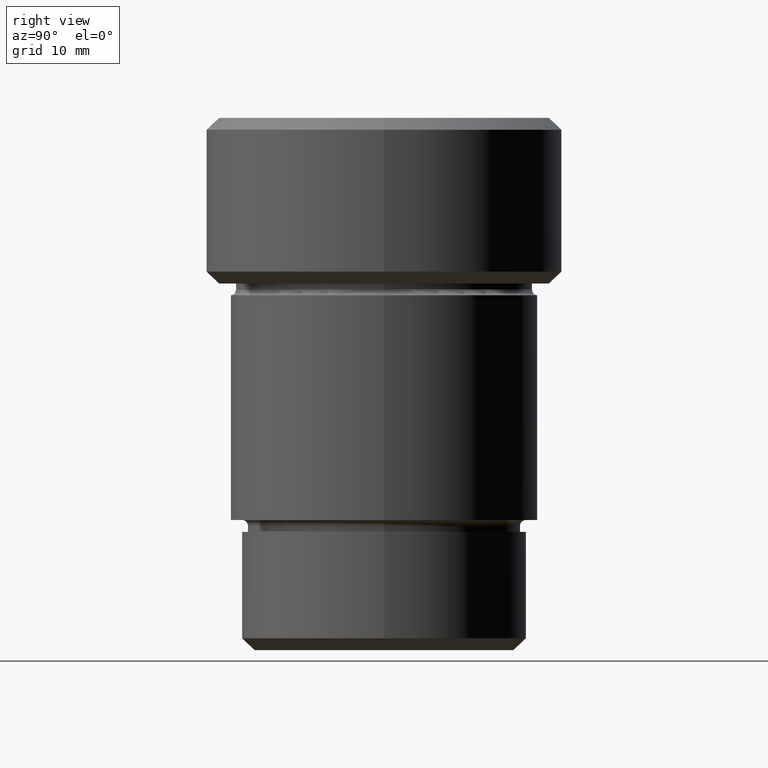
[diagram: clean part render]
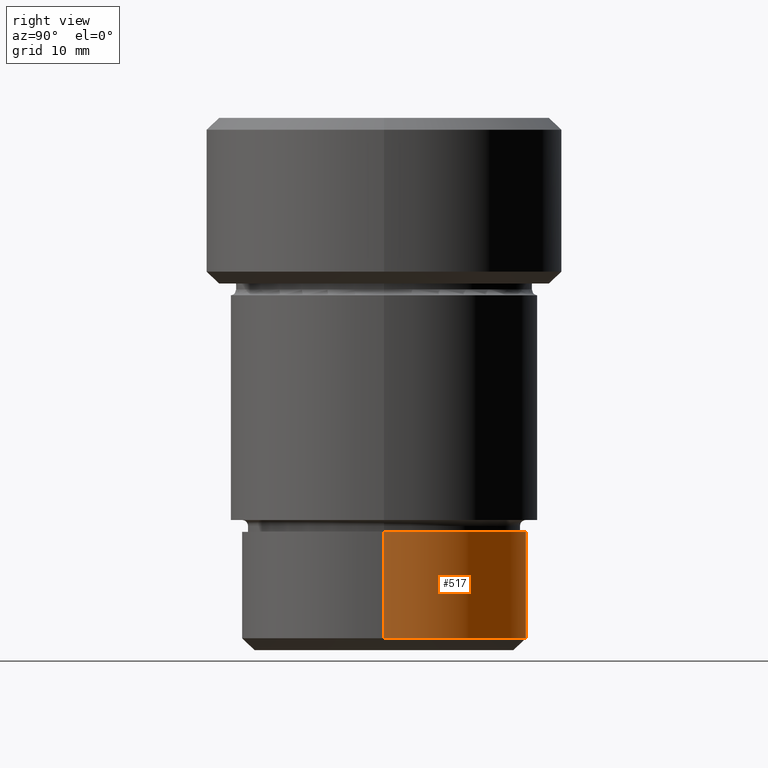
[diagram: same view with one face highlighted and labeled with its STEP entity id]
A machine part, right view. The second image highlights one B-rep face of the part: STEP entity #517.
In plain terms, the highlighted cylindrical surface (partial cylindrical patch) has radius 12 mm, axis along (-0, -0, 1).
Its self-contained STEP definition (entity closure, byte-faithful):
#17 = VERTEX_POINT ( 'NONE', #162 ) ;
#24 = DIRECTION ( 'NONE',  ( -0.000000000000000000, -0.000000000000000000, 1.000000000000000000 ) ) ;
#26 = EDGE_CURVE ( 'NONE', #241, #17, #478, .T. ) ;
#37 = LINE ( 'NONE', #771, #461 ) ;
#143 = VERTEX_POINT ( 'NONE', #452 ) ;
#148 = ORIENTED_EDGE ( 'NONE', *, *, #490, .F. ) ;
#162 = CARTESIAN_POINT ( 'NONE',  ( 12.00000000000000178, 0.000000000000000000, -35.00000000000000000 ) ) ;
#241 = VERTEX_POINT ( 'NONE', #746 ) ;
#269 = AXIS2_PLACEMENT_3D ( 'NONE', #394, #559, #515 ) ;
#272 = DIRECTION ( 'NONE',  ( -1.000000000000000000, 0.000000000000000000, 0.000000000000000000 ) ) ;
#302 = EDGE_CURVE ( 'NONE', #143, #700, #37, .T. ) ;
#351 = CIRCLE ( 'NONE', #707, 12.00000000000000000 ) ;
#357 = DIRECTION ( 'NONE',  ( -0.000000000000000000, -0.000000000000000000, 1.000000000000000000 ) ) ;
#366 = VECTOR ( 'NONE', #357, 1000.000000000000000 ) ;
#368 = AXIS2_PLACEMENT_3D ( 'NONE', #498, #690, #754 ) ;
#394 = CARTESIAN_POINT ( 'NONE',  ( 0.000000000000000000, 0.000000000000000000, -35.00000000000000000 ) ) ;
#447 = FACE_OUTER_BOUND ( 'NONE', #485, .T. ) ;
#452 = CARTESIAN_POINT ( 'NONE',  ( -12.00000000000000000, 1.469576158976823947E-15, -44.00000000000000711 ) ) ;
#461 = VECTOR ( 'NONE', #701, 1000.000000000000000 ) ;
#476 = EDGE_CURVE ( 'NONE', #241, #143, #351, .T. ) ;
#478 = LINE ( 'NONE', #545, #366 ) ;
#485 = EDGE_LOOP ( 'NONE', ( #504, #508, #148, #653 ) ) ;
#490 = EDGE_CURVE ( 'NONE', #17, #700, #642, .T. ) ;
#498 = CARTESIAN_POINT ( 'NONE',  ( 0.000000000000000000, 0.000000000000000000, 0.000000000000000000 ) ) ;
#504 = ORIENTED_EDGE ( 'NONE', *, *, #476, .T. ) ;
#508 = ORIENTED_EDGE ( 'NONE', *, *, #302, .T. ) ;
#515 = DIRECTION ( 'NONE',  ( 1.000000000000000000, 0.000000000000000000, 0.000000000000000000 ) ) ;
#517 = ADVANCED_FACE ( 'NONE', ( #447 ), #618, .T. ) ;
#531 = CARTESIAN_POINT ( 'NONE',  ( -12.00000000000000355, 1.469576158976824342E-15, -35.00000000000000000 ) ) ;
#545 = CARTESIAN_POINT ( 'NONE',  ( 12.00000000000000000, 0.000000000000000000, 0.000000000000000000 ) ) ;
#559 = DIRECTION ( 'NONE',  ( -0.000000000000000000, -0.000000000000000000, 1.000000000000000000 ) ) ;
#618 = CYLINDRICAL_SURFACE ( 'NONE', #368, 12.00000000000000000 ) ;
#627 = CARTESIAN_POINT ( 'NONE',  ( 0.000000000000000000, 0.000000000000000000, -44.00000000000000711 ) ) ;
#642 = CIRCLE ( 'NONE', #269, 12.00000000000000178 ) ;
#653 = ORIENTED_EDGE ( 'NONE', *, *, #26, .F. ) ;
#690 = DIRECTION ( 'NONE',  ( -0.000000000000000000, -0.000000000000000000, 1.000000000000000000 ) ) ;
#700 = VERTEX_POINT ( 'NONE', #531 ) ;
#701 = DIRECTION ( 'NONE',  ( -0.000000000000000000, -0.000000000000000000, 1.000000000000000000 ) ) ;
#707 = AXIS2_PLACEMENT_3D ( 'NONE', #627, #24, #272 ) ;
#746 = CARTESIAN_POINT ( 'NONE',  ( 12.00000000000000000, 0.000000000000000000, -44.00000000000000711 ) ) ;
#754 = DIRECTION ( 'NONE',  ( 1.000000000000000000, 0.000000000000000000, 0.000000000000000000 ) ) ;
#771 = CARTESIAN_POINT ( 'NONE',  ( -12.00000000000000000, 1.469576158976823947E-15, 0.000000000000000000 ) ) ;